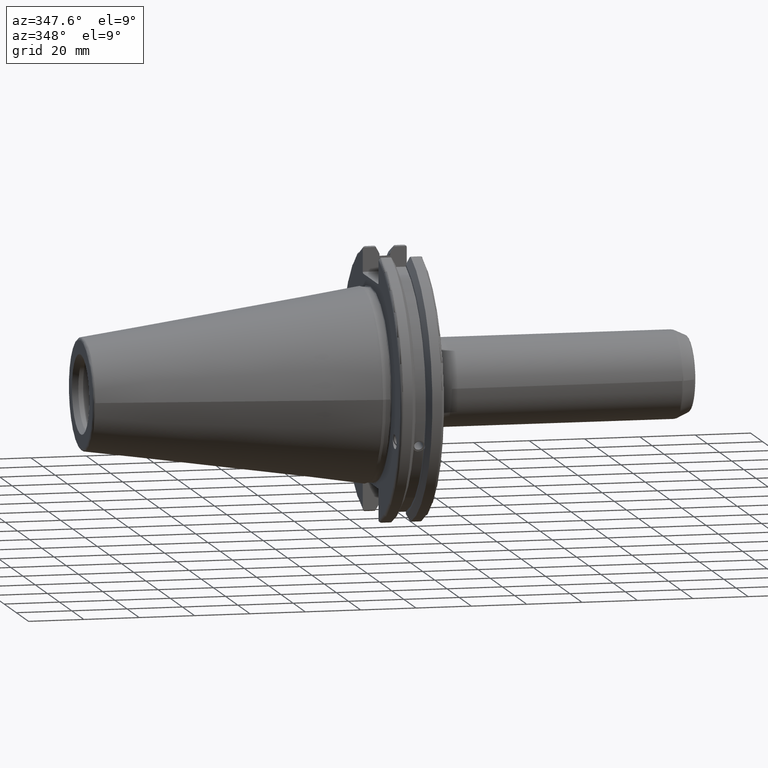
[diagram: clean part render]
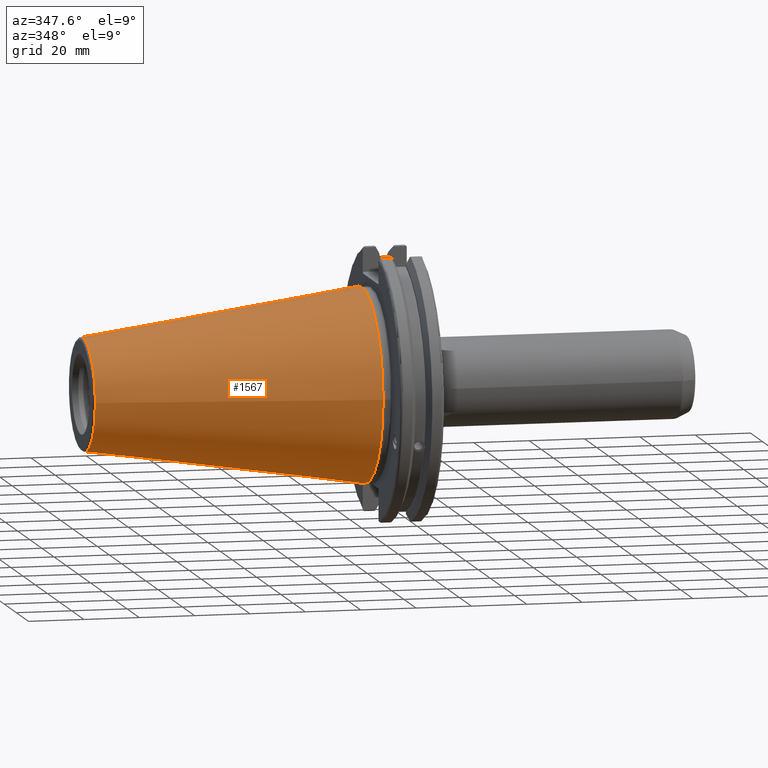
[diagram: same view with one face highlighted and labeled with its STEP entity id]
A machine part, auxiliary view. The second image highlights one B-rep face of the part: STEP entity #1567.
In plain terms, the highlighted conical surface has half-angle 8.297 deg.
Its self-contained STEP definition (entity closure, byte-faithful):
#52=CONICAL_SURFACE('',#1748,27.5166666666666,0.14481249823894);
#174=FACE_OUTER_BOUND('',#281,.T.);
#281=EDGE_LOOP('',(#1349,#1350,#1351,#1352,#1353));
#428=LINE('',#3178,#522);
#522=VECTOR('',#2127,27.5166666666666);
#605=CIRCLE('',#1742,20.233121911427);
#606=CIRCLE('',#1743,20.233121911427);
#610=CIRCLE('',#1749,34.925);
#764=VERTEX_POINT('',#3165);
#765=VERTEX_POINT('',#3166);
#768=VERTEX_POINT('',#3176);
#974=EDGE_CURVE('',#764,#765,#605,.T.);
#975=EDGE_CURVE('',#765,#764,#606,.T.);
#979=EDGE_CURVE('',#768,#768,#610,.T.);
#980=EDGE_CURVE('',#768,#765,#428,.T.);
#1349=ORIENTED_EDGE('',*,*,#979,.F.);
#1350=ORIENTED_EDGE('',*,*,#980,.T.);
#1351=ORIENTED_EDGE('',*,*,#974,.F.);
#1352=ORIENTED_EDGE('',*,*,#975,.F.);
#1353=ORIENTED_EDGE('',*,*,#980,.F.);
#1567=ADVANCED_FACE('',(#174),#52,.T.);
#1742=AXIS2_PLACEMENT_3D('',#3167,#2111,#2112);
#1743=AXIS2_PLACEMENT_3D('',#3168,#2113,#2114);
#1748=AXIS2_PLACEMENT_3D('',#3175,#2123,#2124);
#1749=AXIS2_PLACEMENT_3D('',#3177,#2125,#2126);
#2111=DIRECTION('center_axis',(-1.,0.,0.));
#2112=DIRECTION('ref_axis',(0.,-1.,3.06161699786838E-17));
#2113=DIRECTION('center_axis',(-1.,0.,0.));
#2114=DIRECTION('ref_axis',(0.,-1.,3.06161699786838E-17));
#2123=DIRECTION('center_axis',(1.,0.,0.));
#2124=DIRECTION('ref_axis',(0.,1.,0.));
#2125=DIRECTION('center_axis',(1.,0.,0.));
#2126=DIRECTION('ref_axis',(0.,0.,-1.));
#2127=DIRECTION('',(-0.989532981063281,0.144306893071729,1.76724974695192E-17));
#3165=CARTESIAN_POINT('',(-100.744306893072,-2.47784279855872E-15,20.233121911427));
#3166=CARTESIAN_POINT('',(-100.744306893072,-20.233121911427,-2.47784279855872E-15));
#3167=CARTESIAN_POINT('Origin',(-100.744306893072,0.,-3.09730349819841E-15));
#3168=CARTESIAN_POINT('Origin',(-100.744306893072,0.,-3.09730349819841E-15));
#3175=CARTESIAN_POINT('Origin',(-50.8,0.,0.));
#3176=CARTESIAN_POINT('',(-8.88178419700125E-15,-34.925,-4.27707894602213E-15));
#3177=CARTESIAN_POINT('Origin',(0.,0.,0.));
#3178=CARTESIAN_POINT('',(-50.8,-27.5166666666666,-3.3698197756538E-15));